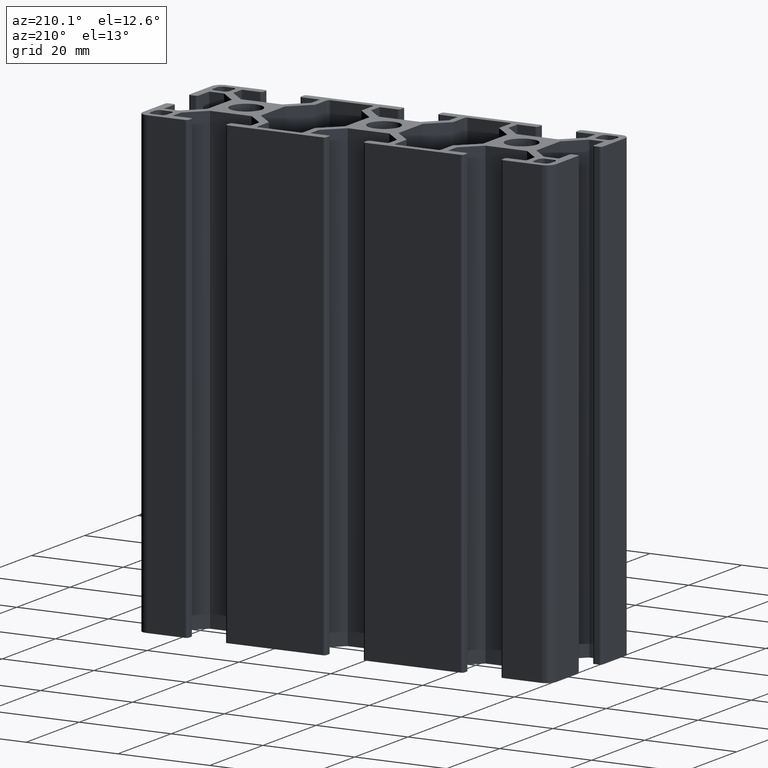
[diagram: clean part render]
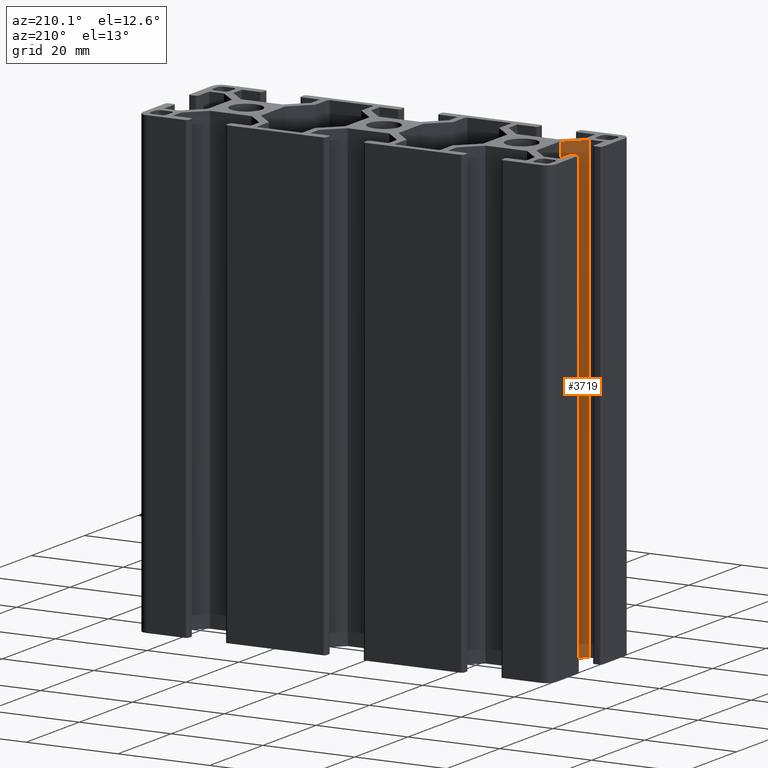
[diagram: same view with one face highlighted and labeled with its STEP entity id]
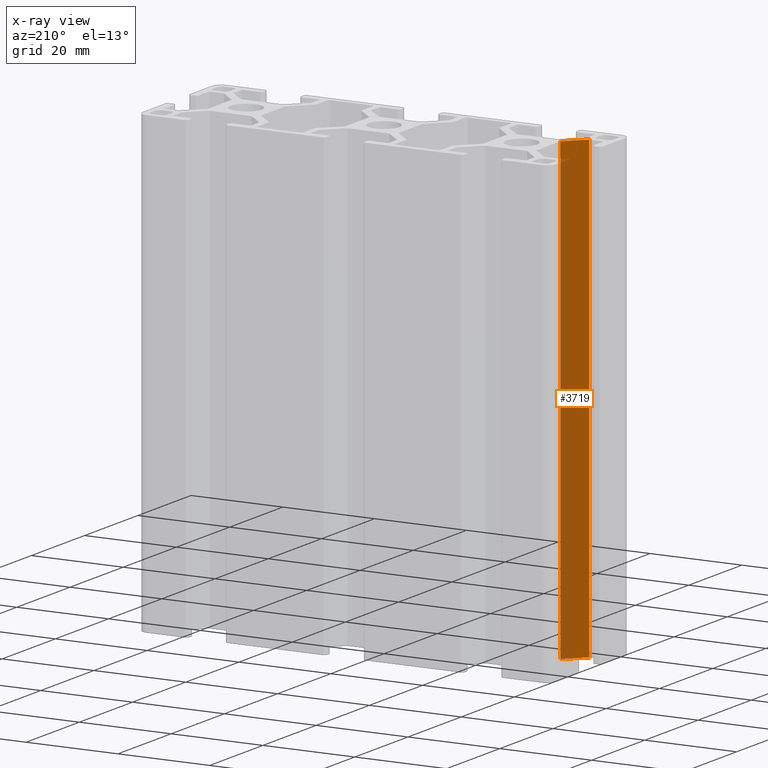
[diagram: x-ray of the same camera — body ghosted, the highlighted face saturated]
A machine part, auxiliary view. The second image highlights one B-rep face of the part: STEP entity #3719.
The next image is the same camera in x-ray: the body ghosted, the highlighted face saturated — about 40% of this face is hidden behind the body in this view.
In plain terms, the highlighted planar face has unit normal (0.7071, -0.7071, 0).
Its self-contained STEP definition (entity closure, byte-faithful):
#282=FACE_OUTER_BOUND('',#471,.T.);
#471=EDGE_LOOP('',(#2648,#2649,#2650,#2651));
#765=LINE('',#5585,#1197);
#767=LINE('',#5589,#1199);
#768=LINE('',#5591,#1200);
#769=LINE('',#5592,#1201);
#1197=VECTOR('',#4489,100.);
#1199=VECTOR('',#4493,5.61867048330828);
#1200=VECTOR('',#4494,100.);
#1201=VECTOR('',#4495,5.61867048330828);
#1608=VERTEX_POINT('',#5582);
#1609=VERTEX_POINT('',#5584);
#1610=VERTEX_POINT('',#5588);
#1611=VERTEX_POINT('',#5590);
#2035=EDGE_CURVE('',#1609,#1608,#765,.T.);
#2037=EDGE_CURVE('',#1610,#1608,#767,.T.);
#2038=EDGE_CURVE('',#1611,#1610,#768,.T.);
#2039=EDGE_CURVE('',#1609,#1611,#769,.T.);
#2648=ORIENTED_EDGE('',*,*,#2037,.F.);
#2649=ORIENTED_EDGE('',*,*,#2038,.F.);
#2650=ORIENTED_EDGE('',*,*,#2039,.F.);
#2651=ORIENTED_EDGE('',*,*,#2035,.T.);
#3577=PLANE('',#3942);
#3719=ADVANCED_FACE('',(#282),#3577,.F.);
#3942=AXIS2_PLACEMENT_3D('',#5587,#4491,#4492);
#4489=DIRECTION('',(0.,0.,1.));
#4491=DIRECTION('center_axis',(0.707106781186547,-0.707106781186548,0.));
#4492=DIRECTION('ref_axis',(0.,0.,-1.));
#4493=DIRECTION('',(-0.707106781186548,-0.707106781186547,0.));
#4494=DIRECTION('',(0.,0.,1.));
#4495=DIRECTION('',(0.707106781186548,0.707106781186547,0.));
#5582=CARTESIAN_POINT('',(-39.773,-8.49999999999998,100.));
#5584=CARTESIAN_POINT('',(-39.773,-8.49999999999998,0.));
#5585=CARTESIAN_POINT('',(-39.773,-8.49999999999998,0.));
#5587=CARTESIAN_POINT('Origin',(-35.8,-4.52700000000001,0.));
#5588=CARTESIAN_POINT('',(-35.8,-4.52700000000001,100.));
#5589=CARTESIAN_POINT('',(-25.7182491675,5.5547508325,100.));
#5590=CARTESIAN_POINT('',(-35.8,-4.52700000000001,0.));
#5591=CARTESIAN_POINT('',(-35.8,-4.52700000000001,0.));
#5592=CARTESIAN_POINT('',(-25.7182491675,5.5547508325,0.));